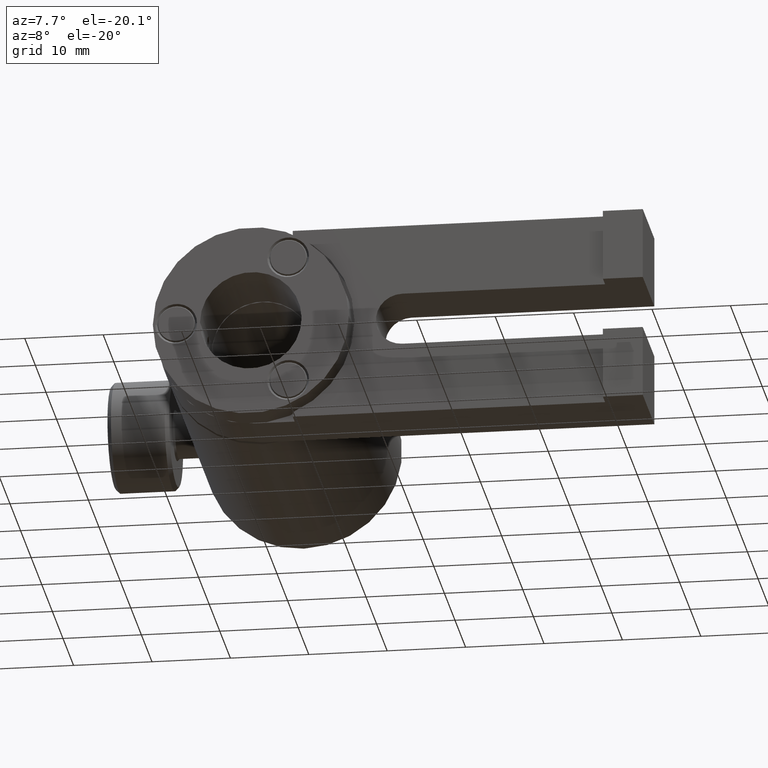
[diagram: clean part render]
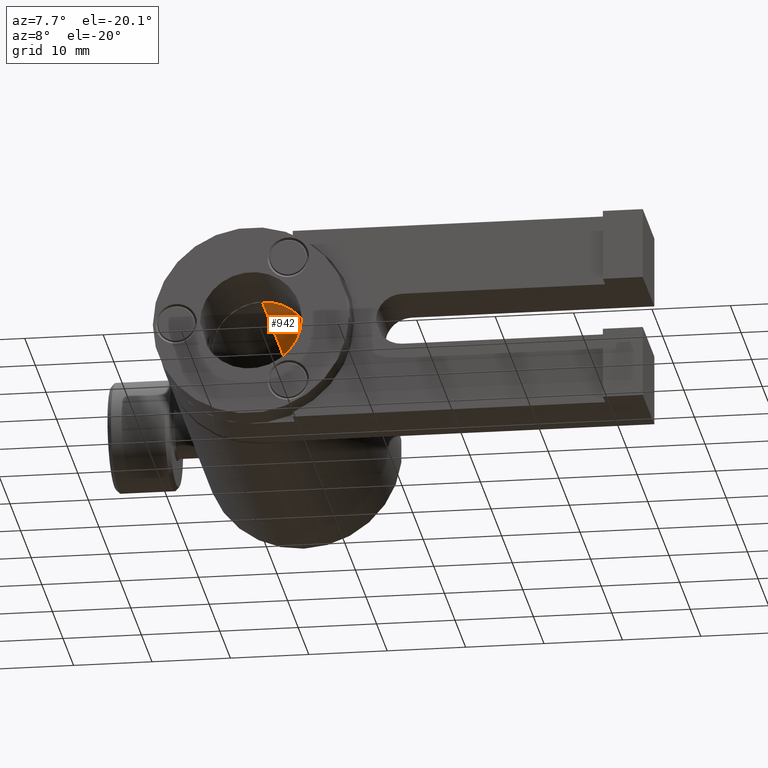
[diagram: same view with one face highlighted and labeled with its STEP entity id]
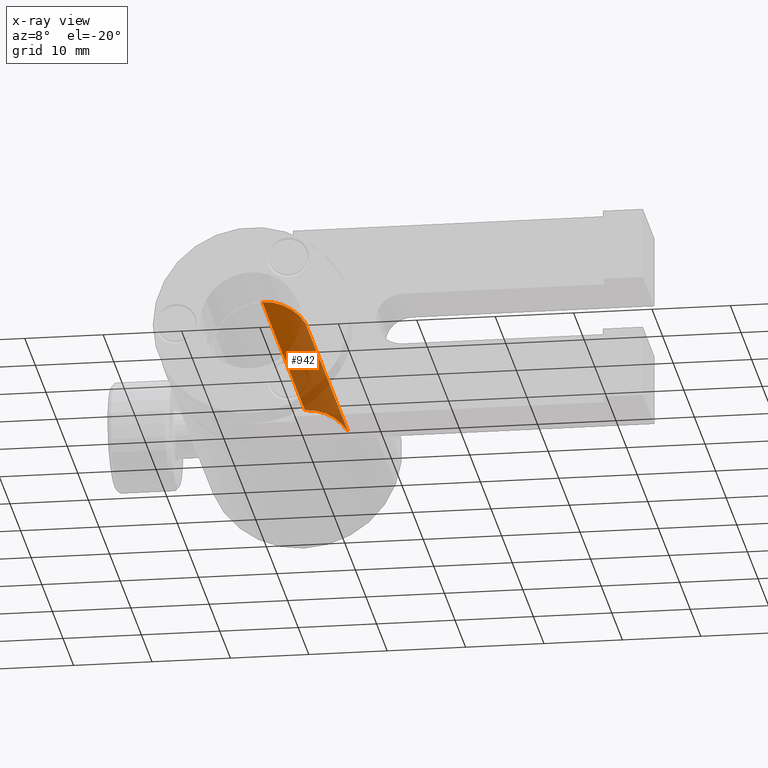
[diagram: x-ray of the same camera — body ghosted, the highlighted face saturated]
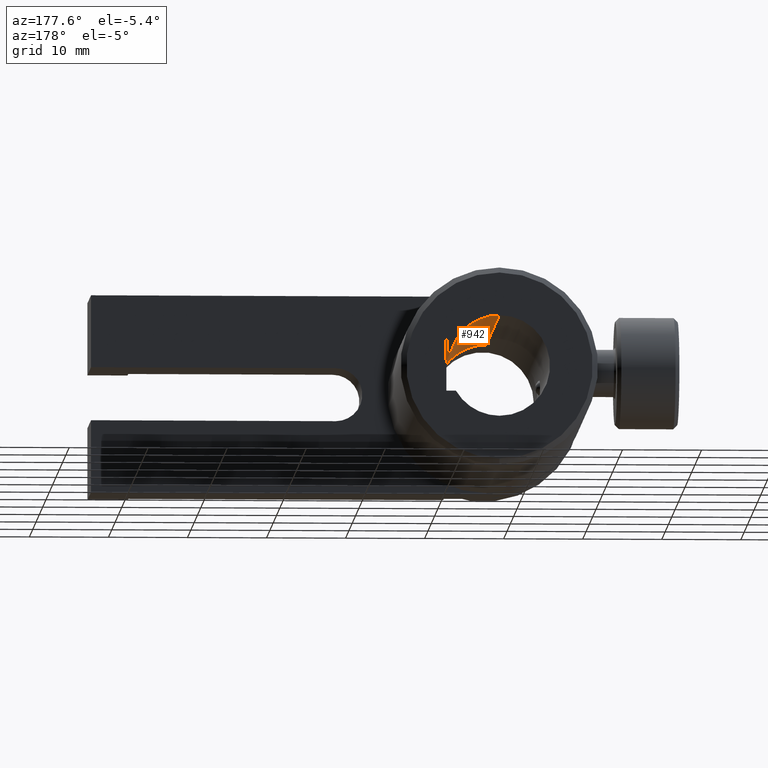
[diagram: same view with one face highlighted and labeled with its STEP entity id]
A machine part, auxiliary view. The second image highlights one B-rep face of the part: STEP entity #942.
The next image is the same camera in x-ray: the body ghosted, the highlighted face saturated — about 70% of this face is hidden behind the body in this view.
A second angle (auxiliary view) of the same face is appended — the face is thin or edge-on in the first view.
In plain terms, the highlighted cylindrical surface (partial cylindrical patch) has radius 6.3881 mm, axis along (-0, -1, -0).
Its self-contained STEP definition (entity closure, byte-faithful):
#2 = VECTOR ( 'NONE', #115, 1000.000000000000000 ) ;
#115 = DIRECTION ( 'NONE',  ( -0.0000000000000000000, -1.000000000000000000, -0.0000000000000000000 ) ) ;
#137 = CARTESIAN_POINT ( 'NONE',  ( 9.636870772621383800, 45.82713478776489100, 3.225799999999997300 ) ) ;
#202 = LINE ( 'NONE', #700, #1676 ) ;
#205 = AXIS2_PLACEMENT_3D ( 'NONE', #1723, #1694, #3474 ) ;
#231 = ORIENTED_EDGE ( 'NONE', *, *, #3291, .F. ) ;
#290 = VERTEX_POINT ( 'NONE', #1905 ) ;
#297 = VERTEX_POINT ( 'NONE', #2295 ) ;
#323 = LINE ( 'NONE', #137, #2 ) ;
#503 = EDGE_CURVE ( 'NONE', #290, #297, #202, .T. ) ;
#700 = CARTESIAN_POINT ( 'NONE',  ( 4.123066643891381700, 45.82713478776489100, 6.388099999999998800 ) ) ;
#723 = DIRECTION ( 'NONE',  ( 0.0000000000000000000, 1.000000000000000000, 0.0000000000000000000 ) ) ;
#942 = ADVANCED_FACE ( 'NONE', ( #1150 ), #1847, .F. ) ;
#1150 = FACE_OUTER_BOUND ( 'NONE', #3597, .T. ) ;
#1258 = ORIENTED_EDGE ( 'NONE', *, *, #3720, .T. ) ;
#1676 = VECTOR ( 'NONE', #3651, 1000.000000000000000 ) ;
#1694 = DIRECTION ( 'NONE',  ( 0.0000000000000000000, 1.000000000000000000, 0.0000000000000000000 ) ) ;
#1723 = CARTESIAN_POINT ( 'NONE',  ( 4.123066643891380800, 5.698134787764893800, -1.839923381405735800E-015 ) ) ;
#1747 = CARTESIAN_POINT ( 'NONE',  ( 9.636870772621383800, 5.698134787764893800, 3.225799999999997300 ) ) ;
#1847 = CYLINDRICAL_SURFACE ( 'NONE', #3300, 6.388100000000000600 ) ;
#1905 = CARTESIAN_POINT ( 'NONE',  ( 4.123066643891381700, 45.82713478776489100, 6.388099999999998800 ) ) ;
#1969 = CARTESIAN_POINT ( 'NONE',  ( 4.123066643891380800, 45.82713478776489100, -1.839923381405735800E-015 ) ) ;
#2136 = ORIENTED_EDGE ( 'NONE', *, *, #3789, .T. ) ;
#2295 = CARTESIAN_POINT ( 'NONE',  ( 4.123066643891381700, 5.698134787764893800, 6.388099999999998800 ) ) ;
#2310 = AXIS2_PLACEMENT_3D ( 'NONE', #3058, #723, #2460 ) ;
#2460 = DIRECTION ( 'NONE',  ( 0.0000000000000000000, 0.0000000000000000000, 1.000000000000000000 ) ) ;
#2798 = DIRECTION ( 'NONE',  ( -0.0000000000000000000, -1.000000000000000000, -0.0000000000000000000 ) ) ;
#2821 = DIRECTION ( 'NONE',  ( 0.0000000000000000000, 0.0000000000000000000, -1.000000000000000000 ) ) ;
#2845 = ORIENTED_EDGE ( 'NONE', *, *, #503, .F. ) ;
#2874 = CIRCLE ( 'NONE', #2310, 6.388100000000000600 ) ;
#2962 = CARTESIAN_POINT ( 'NONE',  ( 9.636870772621383800, 45.82713478776489100, 3.225799999999997300 ) ) ;
#3058 = CARTESIAN_POINT ( 'NONE',  ( 4.123066643891380800, 45.82713478776489100, -1.839923381405735800E-015 ) ) ;
#3291 = EDGE_CURVE ( 'NONE', #297, #3529, #3634, .T. ) ;
#3300 = AXIS2_PLACEMENT_3D ( 'NONE', #1969, #2798, #2821 ) ;
#3474 = DIRECTION ( 'NONE',  ( 0.0000000000000000000, 0.0000000000000000000, 1.000000000000000000 ) ) ;
#3529 = VERTEX_POINT ( 'NONE', #1747 ) ;
#3532 = VERTEX_POINT ( 'NONE', #2962 ) ;
#3597 = EDGE_LOOP ( 'NONE', ( #2845, #1258, #2136, #231 ) ) ;
#3634 = CIRCLE ( 'NONE', #205, 6.388100000000000600 ) ;
#3651 = DIRECTION ( 'NONE',  ( -0.0000000000000000000, -1.000000000000000000, -0.0000000000000000000 ) ) ;
#3720 = EDGE_CURVE ( 'NONE', #290, #3532, #2874, .T. ) ;
#3789 = EDGE_CURVE ( 'NONE', #3532, #3529, #323, .T. ) ;